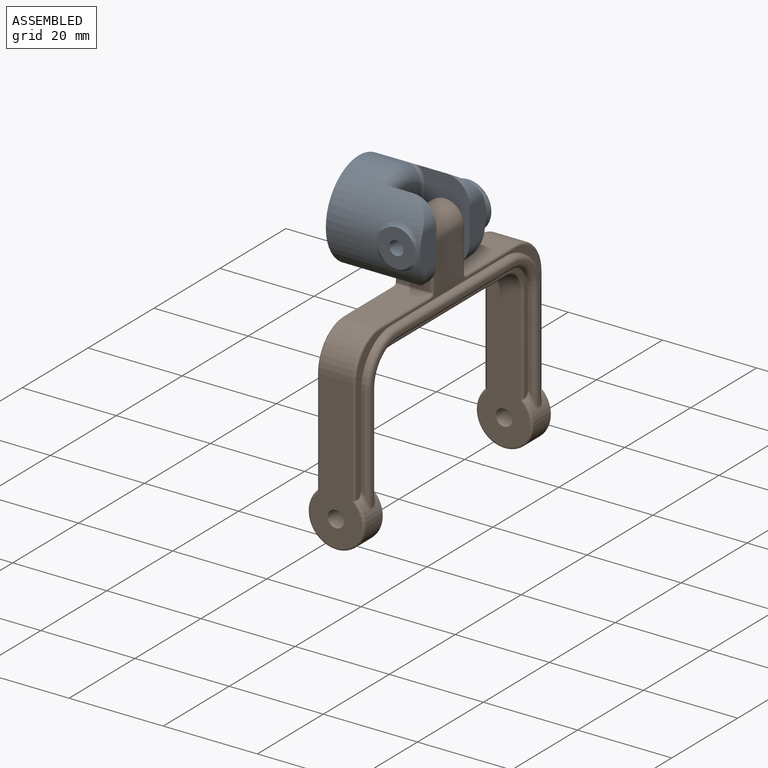
[diagram: assembled view]
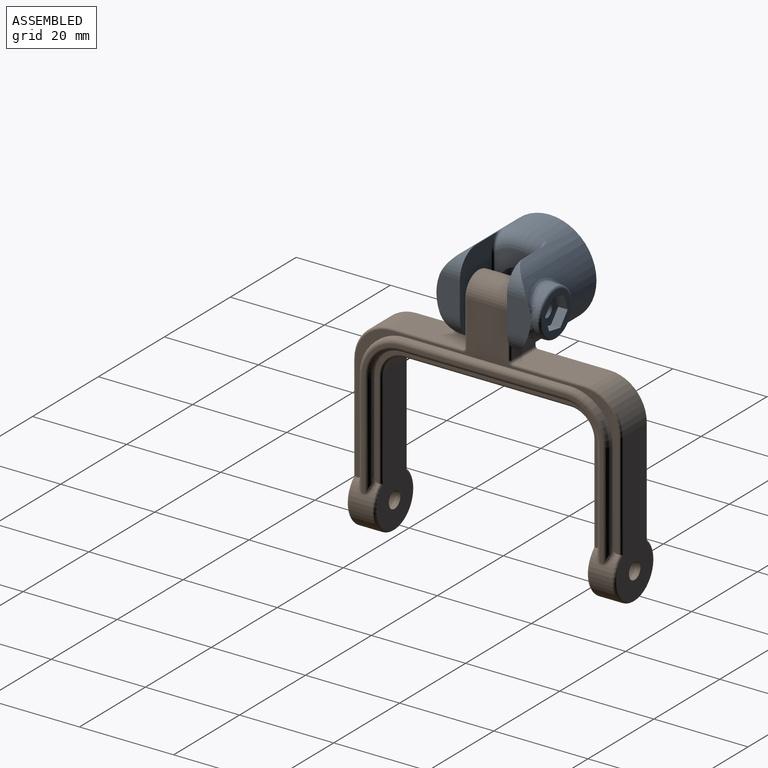
[diagram: assembled view, second angle]
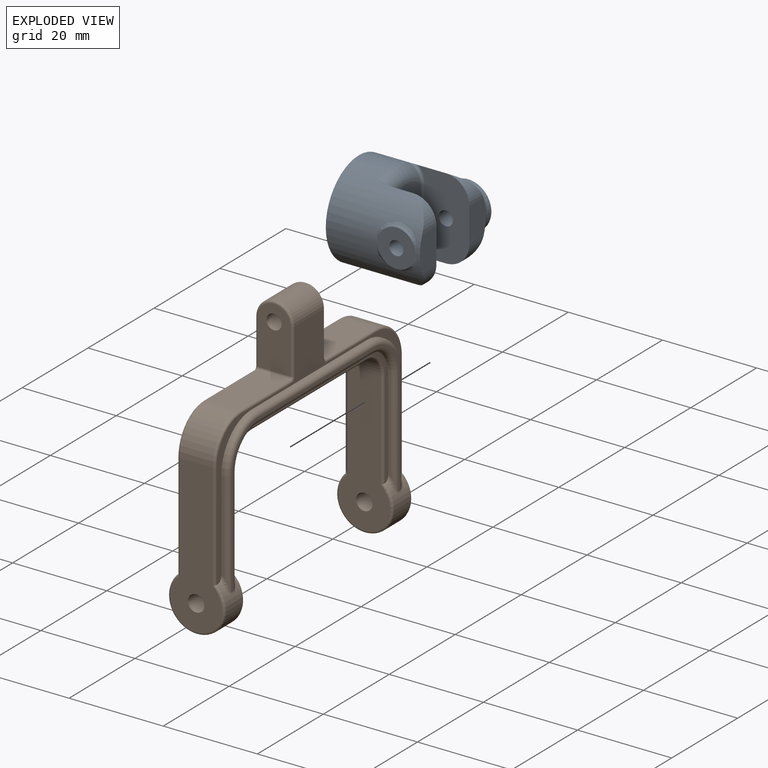
[diagram: exploded view]
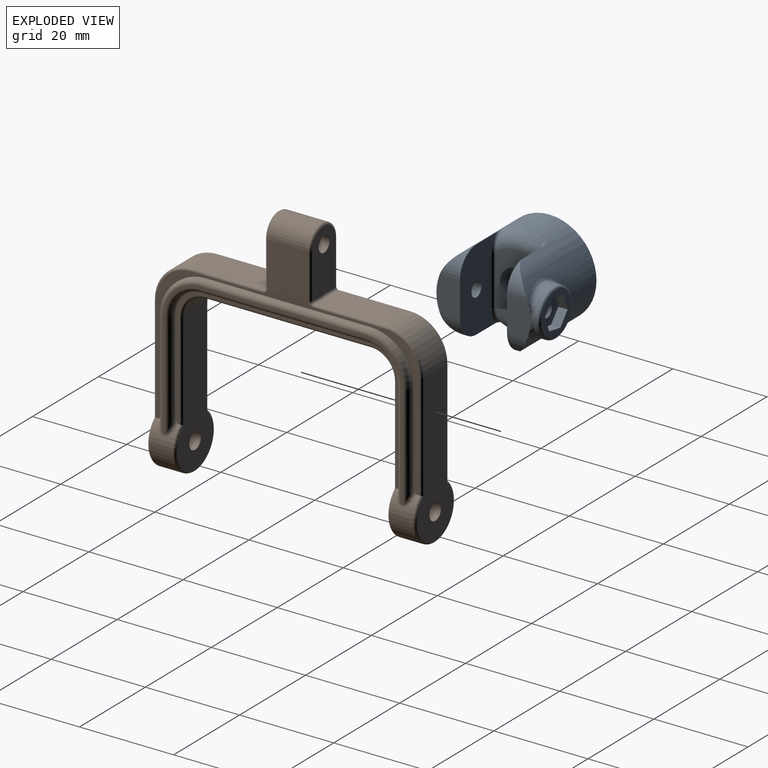
[diagram: exploded view, second angle]
ASSEMBLY  parts=2 mates=2
PART A: 46 faces, bbox 22.9x22.3x22.6 mm
  f0: cylinder r=10mm len=20mm, axis (0,0,-1), area 784.3mm2, adj f1,f2,f3,f4,f7,f25,f27,f28
  f1: plane 7.46x5.14mm, normal (0,0,1), area 34.9mm2, adj f0,f3,f24,f26,f27,f28
  f2: plane 7.32x5mm, normal (0,0,1), area 34.9mm2, adj f0,f4,f29,f30
  f3: plane 17.33x10.85mm, normal (1,0,0), area 149.3mm2, adj f0,f1,f10,f27,f28,f39,f40,f41
  f4: plane 17.33x10.85mm, normal (-1,0,0), area 149.3mm2, adj f0,f2,f9,f29,f30,f42,f43,f44
  f5: plane 6.82x6.51mm, normal (-1,0,0), area 24.1mm2, adj f10,f16,f17,f18,f21,f22,f23
  f6: cylinder r=1.5mm len=8.49mm, axis (0,0,1), area 80mm2, adj f7,f11
  f7: cone r=10mm half-angle=80.1deg, axis (0,0,1), area 311.8mm2, adj f0,f6
  f8: plane 14x9mm, normal (0,0,1), area 78.2mm2, adj f12,f37,f38,f40,f43
  f9: cylinder r=1.5mm len=5mm, axis (1,0,0), area 47.1mm2, adj f4,f14
  f10: cylinder r=1.5mm len=5mm, axis (1,0,0), area 47.1mm2, adj f3,f5
  f11: plane 7x7mm, normal (0,0,1), area 31.4mm2, adj f6,f12
  f12: cylinder r=3.5mm len=7mm, axis (0,0,1), area 66mm2, adj f8,f11
  f13: cylinder r=4mm len=3.2mm, axis (1,0,0), area 0mm2, adj f14,f35
  f14: plane 8.7x8.7mm, normal (1,0,0), area 43.2mm2, adj f9,f13,f15,f31,f33,f34,f36
  f15: cylinder r=4mm len=3.2mm, axis (1,0,0), area 0mm2, adj f14,f32
  f16: plane 3.26x2mm, normal (0,-0.34,-0.94), area 6.9mm2, adj f5,f17,f19,f21
  f17: plane 2.65x2.23mm, normal (0,0.64,-0.77), area 6.9mm2, adj f5,f16,f18,f19
  f18: plane 3.41x2mm, normal (0,0.98,0.17), area 6.9mm2, adj f5,f17,f19,f22
  f19: plane 9x9mm, normal (-1,0,0), area 32.4mm2, adj f16,f17,f18,f21,f22,f23,f45
  f20: cylinder r=5mm len=10mm, axis (-1,0,0), area 46.4mm2, adj f24,f25,f26,f45
  f21: plane 3.41x2mm, normal (0,-0.98,-0.17), area 6.9mm2, adj f5,f16,f19,f23
  f22: plane 3.26x2mm, normal (0,0.34,0.94), area 6.9mm2, adj f5,f18,f19,f23
  f23: plane 2.65x2.23mm, normal (0,-0.64,0.77), area 6.9mm2, adj f5,f19,f21,f22
  f24: bspline ~3.02x1.07mm, area 1.3mm2, adj f1,f20,f25
  f25: bspline ~10.99x10.9mm, area 34.2mm2, adj f0,f20,f24,f26
  f26: bspline ~3.02x1.07mm, area 1.3mm2, adj f1,f20,f25
  f27: cylinder r=5mm len=5mm, axis (-1,0,0), area 16.9mm2, adj f0,f1,f3
  f28: cylinder r=5mm len=5mm, axis (-1,0,0), area 16.9mm2, adj f0,f1,f3
  f29: cylinder r=5mm len=5mm, axis (-1,0,0), area 16.9mm2, adj f0,f2,f4
  f30: cylinder r=5mm len=5mm, axis (-1,0,0), area 16.9mm2, adj f0,f2,f4
  f31: bspline ~4.44x3.34mm, area 2.1mm2, adj f0,f14,f32
  f32: bspline ~5.98x1.44mm, area 4.1mm2, adj f0,f15,f31,f33
  f33: bspline ~4.44x3.34mm, area 2.1mm2, adj f0,f14,f32
  f34: bspline ~4.44x3.34mm, area 2.1mm2, adj f0,f14,f35
  f35: bspline ~5.98x1.44mm, area 4.1mm2, adj f0,f13,f34,f36
  f36: bspline ~4.44x3.34mm, area 2.1mm2, adj f0,f14,f35
  f37: torus R=7mm, axis (0,0,1), area 47.3mm2, adj f0,f8,f41,f44
  f38: torus R=7mm, axis (0,0,1), area 47.3mm2, adj f0,f8,f39,f42
  f39: bspline ~5.83x3.78mm, area 4mm2, adj f0,f3,f38,f40
  f40: cylinder r=0.5mm len=10.72mm, axis (0,-1,0), area 8.4mm2, adj f3,f8,f39,f41
  f41: bspline ~5.83x3.78mm, area 4mm2, adj f0,f3,f37,f40
  f42: bspline ~5.83x3.78mm, area 4mm2, adj f0,f4,f38,f43
  f43: cylinder r=0.5mm len=10.72mm, axis (0,1,0), area 8.4mm2, adj f4,f8,f42,f44
  f44: bspline ~5.83x3.78mm, area 4mm2, adj f0,f4,f37,f43
  f45: torus R=4.5mm, axis (-1,0,0), area 23.8mm2, adj f19,f20
PART B: 123 faces, bbox 13.1x58.4x55.9 mm
  f0: plane 56.12x40.65mm, normal (1,0,0), area 213.7mm2, adj f4,f5,f32,f36,f38,f40,f42,f70
  f1: plane 56.12x40.65mm, normal (-1,0,0), area 213.7mm2, adj f4,f5,f22,f25,f26,f29,f31,f68
  f2: plane 13x7mm, normal (0,-1,0), area 77.7mm2, adj f18,f85,f87,f89,f91
  f3: plane 13x7mm, normal (0,1,0), area 77.7mm2, adj f17,f85,f99,f101,f103
  f4: cylinder r=6mm len=12mm, axis (0,-1,0), area 126mm2, adj f0,f1,f6,f7,f71,f72,f73,f76
  f5: cylinder r=6mm len=12mm, axis (0,1,0), area 126mm2, adj f0,f1,f6,f7,f66,f67,f68,f81
  f6: plane 48.22x27.2mm, normal (-1,0,0), area 99.2mm2, adj f4,f5,f21,f24,f27,f28,f30,f65
  f7: plane 48.22x27.2mm, normal (1,0,0), area 99.2mm2, adj f4,f5,f33,f35,f37,f39,f41,f73
  f8: plane 15.13x7mm, normal (0,0,1), area 105.9mm2, adj f18,f44,f90,f95
  f9: plane 15.13x7mm, normal (0,0,1), area 105.9mm2, adj f17,f43,f102,f107
  f10: plane 35x7mm, normal (0,0,-1), area 245mm2, adj f15,f16,f115,f118
  f11: plane 30.5x11mm, normal (0,1,0), area 224.7mm2, adj f15,f20,f119,f121,f122
  f12: plane 32.5x11mm, normal (0,-1,0), area 238.7mm2, adj f20,f44,f94,f96,f98
  f13: plane 30.5x11mm, normal (0,-1,0), area 224.7mm2, adj f16,f19,f111,f112,f114
  f14: plane 32.5x11mm, normal (0,1,0), area 238.7mm2, adj f19,f43,f106,f108,f110
  f15: cylinder r=5mm len=7mm, axis (-1,0,0), area 55mm2, adj f10,f11,f117,f120
  f16: cylinder r=5mm len=7mm, axis (1,0,0), area 55mm2, adj f10,f13,f113,f116
  f17: cylinder r=0.5mm len=7mm, axis (1,0,0), area 5.5mm2, adj f3,f9,f100,f105
  f18: cylinder r=0.5mm len=7mm, axis (-1,0,0), area 5.5mm2, adj f2,f8,f88,f93
  f19: cylinder r=1.75mm len=6mm, axis (0,1,0), area 66mm2, adj f13,f14
  f20: cylinder r=1.75mm len=6mm, axis (0,1,0), area 66mm2, adj f11,f12
  f21: plane 19.64x0.5mm, normal (0,-1,0), area 9.7mm2, adj f6,f24,f60,f65
  f22: plane 19.64x0.5mm, normal (0,1,0), area 9.7mm2, adj f1,f25,f55,f69
  f23: plane 51.1x30.45mm, normal (-1,0,0), area 52.2mm2, adj f55,f56,f57,f58,f59,f60,f61,f62
  f24: cylinder r=6.55mm len=6.55mm, axis (1,0,0), area 5.1mm2, adj f6,f21,f27,f61
  f25: cylinder r=9.05mm len=9.05mm, axis (1,0,0), area 7.1mm2, adj f1,f22,f26,f56
  f26: plane 35x0.5mm, normal (0,0,1), area 17.5mm2, adj f1,f25,f29,f57
  f27: plane 35x0.5mm, normal (0,0,-1), area 17.5mm2, adj f6,f24,f28,f62
  f28: cylinder r=6.55mm len=6.55mm, axis (1,0,0), area 5.1mm2, adj f6,f27,f30,f63
  f29: cylinder r=9.05mm len=9.05mm, axis (1,0,0), area 7.1mm2, adj f1,f26,f31,f58
  f30: plane 19.64x0.5mm, normal (0,1,0), area 9.7mm2, adj f6,f28,f64,f79
  f31: plane 19.64x0.5mm, normal (0,-1,0), area 9.7mm2, adj f1,f29,f59,f75
  f32: plane 19.64x0.5mm, normal (0,1,0), area 9.7mm2, adj f0,f36,f49,f84
  f33: plane 19.64x0.5mm, normal (0,-1,0), area 9.7mm2, adj f7,f35,f54,f80
  f34: plane 51.1x30.45mm, normal (1,0,0), area 52.2mm2, adj f45,f46,f47,f48,f49,f50,f51,f52
  f35: cylinder r=6.55mm len=6.55mm, axis (-1,0,0), area 5.1mm2, adj f7,f33,f37,f53
  f36: cylinder r=9.05mm len=9.05mm, axis (-1,0,0), area 7.1mm2, adj f0,f32,f38,f48
  f37: plane 35x0.5mm, normal (0,0,-1), area 17.5mm2, adj f7,f35,f39,f52
  f38: plane 35x0.5mm, normal (0,0,1), area 17.5mm2, adj f0,f36,f40,f47
  f39: cylinder r=6.55mm len=6.55mm, axis (-1,0,0), area 5.1mm2, adj f7,f37,f41,f51
  f40: cylinder r=9.05mm len=9.05mm, axis (-1,0,0), area 7.1mm2, adj f0,f38,f42,f46
  f41: plane 19.64x0.5mm, normal (0,1,0), area 9.7mm2, adj f7,f39,f50,f74
  f42: plane 19.64x0.5mm, normal (0,-1,0), area 9.7mm2, adj f0,f40,f45,f70
  f43: cylinder r=8mm len=8mm, axis (-1,0,0), area 88mm2, adj f9,f14,f104,f109
  f44: cylinder r=8mm len=8mm, axis (1,0,0), area 88mm2, adj f8,f12,f92,f97
  f45: cylinder r=1mm len=22.4mm, axis (0,0,1), area 33mm2, adj f34,f42,f46,f71
  f46: torus R=8.05mm, axis (-1,0,0), area 21.4mm2, adj f34,f40,f45,f47
  f47: cylinder r=1mm len=35mm, axis (0,1,0), area 55mm2, adj f34,f38,f46,f48
  f48: torus R=8.05mm, axis (-1,0,0), area 21.4mm2, adj f34,f36,f47,f49
  f49: cylinder r=1mm len=22.4mm, axis (0,0,-1), area 33mm2, adj f32,f34,f48,f83
  f50: cylinder r=1mm len=22.4mm, axis (0,0,-1), area 33mm2, adj f34,f41,f51,f73
  f51: torus R=7.55mm, axis (-1,0,0), area 17.1mm2, adj f34,f39,f50,f52
  f52: cylinder r=1mm len=35mm, axis (0,-1,0), area 55mm2, adj f34,f37,f51,f53
  f53: torus R=7.55mm, axis (-1,0,0), area 17.1mm2, adj f34,f35,f52,f54
  f54: cylinder r=1mm len=22.4mm, axis (0,0,1), area 33mm2, adj f33,f34,f53,f81
  f55: cylinder r=1mm len=22.4mm, axis (0,0,1), area 33mm2, adj f22,f23,f56,f68
  f56: torus R=8.05mm, axis (-1,0,0), area 21.4mm2, adj f23,f25,f55,f57
  f57: cylinder r=1mm len=35mm, axis (0,-1,0), area 55mm2, adj f23,f26,f56,f58
  f58: torus R=8.05mm, axis (-1,0,0), area 21.4mm2, adj f23,f29,f57,f59
  f59: cylinder r=1mm len=22.4mm, axis (0,0,-1), area 33mm2, adj f23,f31,f58,f76
  f60: cylinder r=1mm len=22.4mm, axis (0,0,-1), area 33mm2, adj f21,f23,f61,f66
  f61: torus R=7.55mm, axis (-1,0,0), area 17.1mm2, adj f23,f24,f60,f62
  f62: cylinder r=1mm len=35mm, axis (0,1,0), area 55mm2, adj f23,f27,f61,f63
  f63: torus R=7.55mm, axis (-1,0,0), area 17.1mm2, adj f23,f28,f62,f64
  f64: cylinder r=1mm len=22.4mm, axis (0,0,1), area 33mm2, adj f23,f30,f63,f78
  f65: torus R=7mm, axis (0,-1,0), area 0.3mm2, adj f6,f21,f66
  f66: bspline ~3.55x2.18mm, area 3.2mm2, adj f5,f6,f60,f65,f67
  f67: cylinder r=1mm len=0.5mm, axis (0,1,0), area 0.2mm2, adj f5,f23,f66,f68
  f68: bspline ~3.55x2.18mm, area 3.2mm2, adj f1,f5,f55,f67,f69
  f69: torus R=7mm, axis (0,-1,0), area 0.3mm2, adj f1,f22,f68
  f70: torus R=7mm, axis (0,1,0), area 0.3mm2, adj f0,f42,f71
  f71: bspline ~3.55x2.18mm, area 3.2mm2, adj f0,f4,f45,f70,f72
  f72: cylinder r=1mm len=0.5mm, axis (0,-1,0), area 0.2mm2, adj f4,f34,f71,f73
  f73: bspline ~3.55x2.18mm, area 3.2mm2, adj f4,f7,f50,f72,f74
  f74: torus R=7mm, axis (0,1,0), area 0.3mm2, adj f7,f41,f73
  f75: torus R=7mm, axis (0,1,0), area 0.3mm2, adj f1,f31,f76
  f76: bspline ~3.55x2.18mm, area 3.2mm2, adj f1,f4,f59,f75,f77
  f77: cylinder r=1mm len=0.5mm, axis (0,-1,0), area 0.2mm2, adj f4,f23,f76,f78
  f78: bspline ~3.55x2.18mm, area 3.2mm2, adj f4,f6,f64,f77,f79
  f79: torus R=7mm, axis (0,1,0), area 0.3mm2, adj f6,f30,f78
  f80: torus R=7mm, axis (0,-1,0), area 0.3mm2, adj f7,f33,f81
  f81: bspline ~3.55x2.18mm, area 3.2mm2, adj f5,f7,f54,f80,f82
  f82: cylinder r=1mm len=0.5mm, axis (0,1,0), area 0.2mm2, adj f5,f34,f81,f83
  f83: bspline ~3.55x2.18mm, area 3.2mm2, adj f0,f5,f49,f82,f84
  f84: torus R=7mm, axis (0,-1,0), area 0.3mm2, adj f0,f32,f83
  f85: cylinder r=1.6mm len=9.75mm, axis (0,-1,0), area 98mm2, adj f2,f3
  f86: cylinder r=4mm len=8.75mm, axis (0,-1,0), area 110mm2, adj f0,f1,f89,f101
  f87: cylinder r=0.5mm len=9.5mm, axis (0,0,1), area 7.5mm2, adj f1,f2,f88,f89
  f88: torus R=1mm, axis (1,0,0), area 0.8mm2, adj f1,f18,f87,f90
  f89: torus R=3.5mm, axis (0,-1,0), area 9.4mm2, adj f2,f86,f87,f91
  f90: cylinder r=0.5mm len=15.13mm, axis (0,-1,0), area 11.9mm2, adj f1,f8,f88,f92
  f91: cylinder r=0.5mm len=9.5mm, axis (0,0,-1), area 7.5mm2, adj f0,f2,f89,f93
  f92: torus R=7.5mm, axis (1,0,0), area 9.6mm2, adj f1,f44,f90,f94
  f93: torus R=1mm, axis (1,0,0), area 0.8mm2, adj f0,f18,f91,f95
  f94: cylinder r=0.5mm len=22.76mm, axis (0,0,-1), area 17.8mm2, adj f1,f12,f92,f96
  f95: cylinder r=0.5mm len=15.13mm, axis (0,-1,0), area 11.9mm2, adj f0,f8,f93,f97
  f96: torus R=5.5mm, axis (0,1,0), area 22.2mm2, adj f4,f12,f94,f98
  f97: torus R=7.5mm, axis (1,0,0), area 9.6mm2, adj f0,f44,f95,f98
  f98: cylinder r=0.5mm len=22.76mm, axis (0,0,-1), area 17.8mm2, adj f0,f12,f96,f97
  f99: cylinder r=0.5mm len=9.5mm, axis (0,0,-1), area 7.5mm2, adj f1,f3,f100,f101
  f100: torus R=1mm, axis (1,0,0), area 0.8mm2, adj f1,f17,f99,f102
  f101: torus R=3.5mm, axis (0,-1,0), area 9.4mm2, adj f3,f86,f99,f103
  f102: cylinder r=0.5mm len=15.13mm, axis (0,-1,0), area 11.9mm2, adj f1,f9,f100,f104
  f103: cylinder r=0.5mm len=9.5mm, axis (0,0,1), area 7.5mm2, adj f0,f3,f101,f105
  f104: torus R=7.5mm, axis (1,0,0), area 9.6mm2, adj f1,f43,f102,f106
  f105: torus R=1mm, axis (1,0,0), area 0.8mm2, adj f0,f17,f103,f107
  f106: cylinder r=0.5mm len=22.76mm, axis (0,0,1), area 17.8mm2, adj f1,f14,f104,f108
  f107: cylinder r=0.5mm len=15.13mm, axis (0,-1,0), area 11.9mm2, adj f0,f9,f105,f109
  f108: torus R=5.5mm, axis (0,1,0), area 22.2mm2, adj f5,f14,f106,f110
  f109: torus R=7.5mm, axis (1,0,0), area 9.6mm2, adj f0,f43,f107,f110
  f110: cylinder r=0.5mm len=22.76mm, axis (0,0,1), area 17.8mm2, adj f0,f14,f108,f109
  f111: cylinder r=0.5mm len=20.76mm, axis (0,0,-1), area 16.2mm2, adj f6,f13,f112,f113
  f112: torus R=5.5mm, axis (0,-1,0), area 22.2mm2, adj f5,f13,f111,f114
  f113: torus R=5.5mm, axis (1,0,0), area 6.4mm2, adj f6,f16,f111,f115
  f114: cylinder r=0.5mm len=20.76mm, axis (0,0,-1), area 16.2mm2, adj f7,f13,f112,f116
  f115: cylinder r=0.5mm len=35mm, axis (0,1,0), area 27.5mm2, adj f6,f10,f113,f117
  f116: torus R=5.5mm, axis (1,0,0), area 6.4mm2, adj f7,f16,f114,f118
  f117: torus R=5.5mm, axis (1,0,0), area 6.4mm2, adj f6,f15,f115,f119
  f118: cylinder r=0.5mm len=35mm, axis (0,1,0), area 27.5mm2, adj f7,f10,f116,f120
  f119: cylinder r=0.5mm len=20.76mm, axis (0,0,1), area 16.2mm2, adj f6,f11,f117,f121
  f120: torus R=5.5mm, axis (1,0,0), area 6.4mm2, adj f7,f15,f118,f122
  f121: torus R=5.5mm, axis (0,-1,0), area 22.2mm2, adj f4,f11,f119,f122
  f122: cylinder r=0.5mm len=20.76mm, axis (0,0,1), area 16.2mm2, adj f7,f11,f120,f121
PLACE A rot(axis=(-0.58,0.58,-0.58),120deg) t=(-32.05,-17.41,4.54)mm
PLACE B t=(-15.3,-12.41,1.54)mm
MATE planar A.f28 <-> B.f3  axis (0,-1,0) through (-15.3,-12.41,8.2)mm
MATE cylindrical A.f9 <-> B.f85  axis (0,-1,0) through (-15.3,-27.41,4.54)mm
